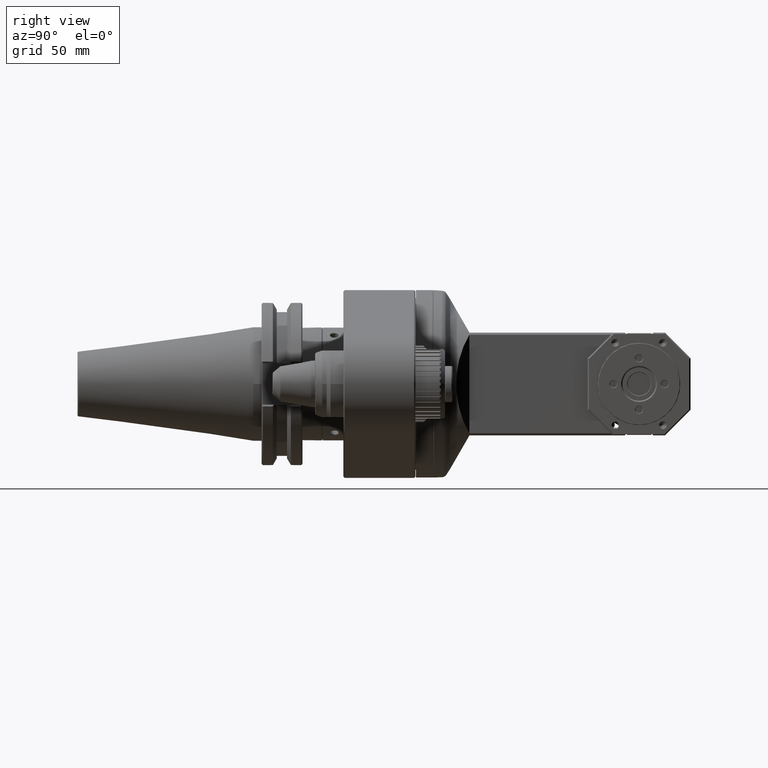
[diagram: clean part render]
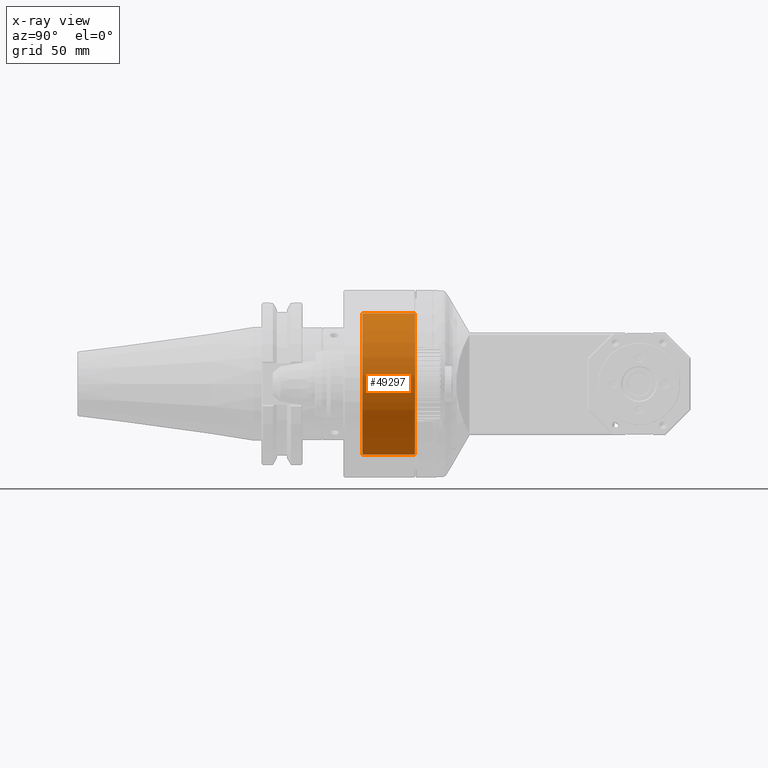
[diagram: x-ray — body ghosted, one internal face saturated and labeled with its STEP entity id]
A machine part, right view, then the same camera in x-ray: the body is ghosted and one INTERNAL B-rep face — a face not visible from any outside direction — is saturated and labeled: STEP entity #49297.
In plain terms, the highlighted cylindrical surface (partial cylindrical patch) has radius 27.5 mm, axis along (0, 1, 0).
Its self-contained STEP definition (entity closure, byte-faithful):
#5589=FACE_OUTER_BOUND('',#8543,.T.);
#8543=EDGE_LOOP('',(#44295,#44296,#44297,#44298));
#13502=LINE('',#82788,#18584);
#13528=LINE('',#82948,#18610);
#18584=VECTOR('',#64747,10.);
#18610=VECTOR('',#64831,10.);
#20352=CIRCLE('',#53107,27.5);
#20353=CIRCLE('',#53109,27.5);
#24668=VERTEX_POINT('',#82785);
#24669=VERTEX_POINT('',#82787);
#24705=VERTEX_POINT('',#82945);
#24706=VERTEX_POINT('',#82947);
#31293=EDGE_CURVE('',#24669,#24668,#13502,.T.);
#31339=EDGE_CURVE('',#24705,#24706,#13528,.T.);
#31387=EDGE_CURVE('',#24668,#24706,#20352,.T.);
#31388=EDGE_CURVE('',#24705,#24669,#20353,.T.);
#44295=ORIENTED_EDGE('',*,*,#31387,.T.);
#44296=ORIENTED_EDGE('',*,*,#31339,.F.);
#44297=ORIENTED_EDGE('',*,*,#31388,.T.);
#44298=ORIENTED_EDGE('',*,*,#31293,.T.);
#46921=CYLINDRICAL_SURFACE('',#53108,27.5);
#49297=ADVANCED_FACE('',(#5589),#46921,.F.);
#53107=AXIS2_PLACEMENT_3D('',#83050,#64954,#64955);
#53108=AXIS2_PLACEMENT_3D('',#83051,#64956,#64957);
#53109=AXIS2_PLACEMENT_3D('',#83052,#64958,#64959);
#64747=DIRECTION('',(0.,1.,0.));
#64831=DIRECTION('',(0.,1.,0.));
#64954=DIRECTION('center_axis',(0.,1.,0.));
#64955=DIRECTION('ref_axis',(-0.99962802999271,0.,0.0272727272727303));
#64956=DIRECTION('center_axis',(0.,1.,0.));
#64957=DIRECTION('ref_axis',(1.,0.,-1.59265981952815E-15));
#64958=DIRECTION('center_axis',(0.,-1.,0.));
#64959=DIRECTION('ref_axis',(-0.99962802999271,0.,-0.0272727272727303));
#82785=CARTESIAN_POINT('',(-27.4897708286863,20.6999877931761,0.750000083093933));
#82787=CARTESIAN_POINT('',(-27.4897708181584,0.299983062500631,0.749999859473459));
#82788=CARTESIAN_POINT('',(-27.4897708247995,-8.75,0.75));
#82945=CARTESIAN_POINT('',(-27.4897708181584,0.299983062500786,-0.749999859473361));
#82947=CARTESIAN_POINT('',(-27.4897708286863,20.6999877931761,-0.750000083093924));
#82948=CARTESIAN_POINT('',(-27.4897708247995,-8.75,-0.75));
#83050=CARTESIAN_POINT('Origin',(0.,20.6999877789335,0.));
#83051=CARTESIAN_POINT('Origin',(0.,-8.75,0.));
#83052=CARTESIAN_POINT('Origin',(0.,0.299983010389995,0.));